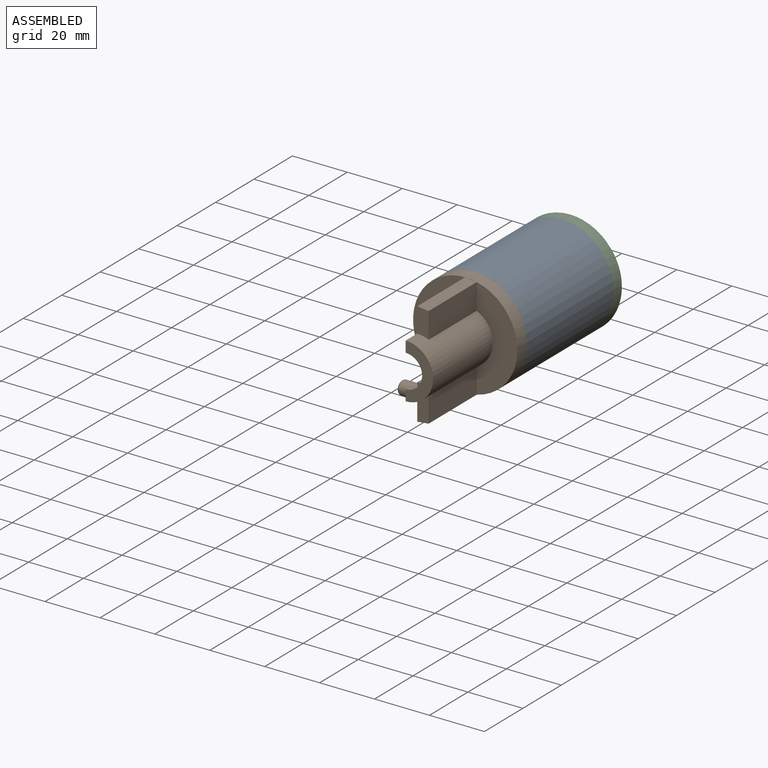
[diagram: assembled view]
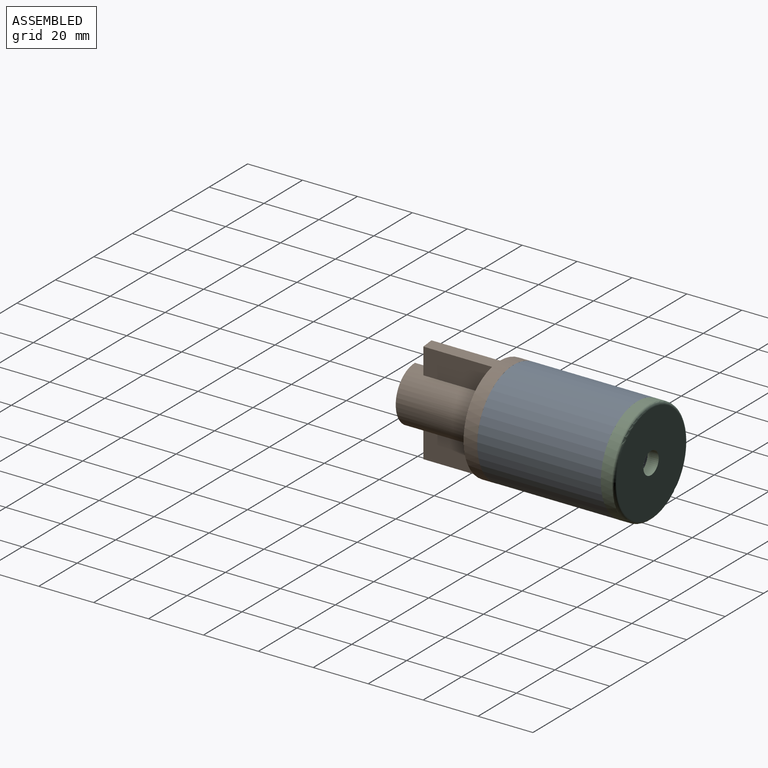
[diagram: assembled view, second angle]
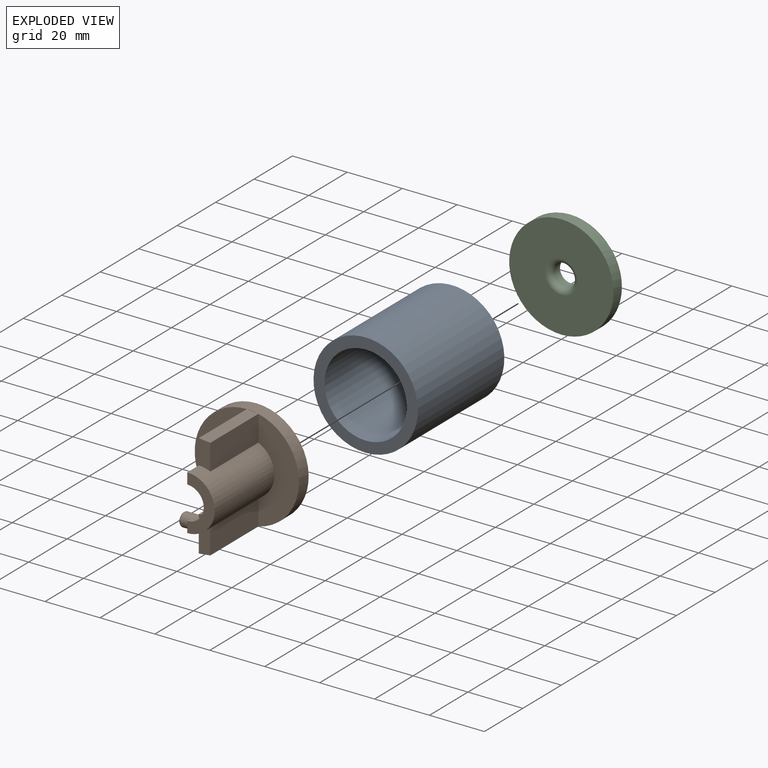
[diagram: exploded view]
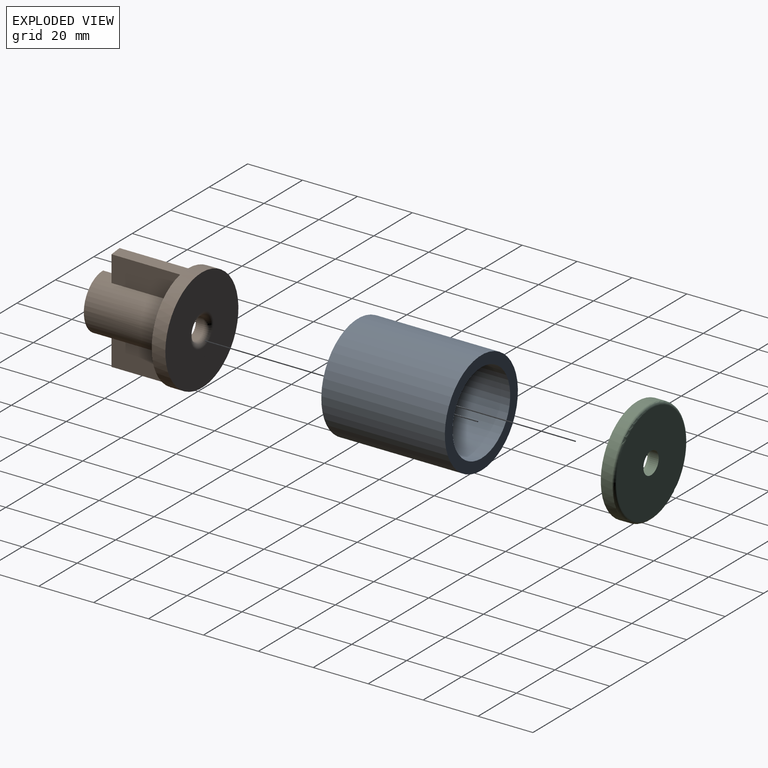
[diagram: exploded view, second angle]
ASSEMBLY  parts=3 mates=2
PART A: 4 faces, bbox 38x45x38 mm
  f0: cylinder r=15mm len=45mm, axis (0,1,0), area 4241.2mm2, adj f2,f3
  f1: cylinder r=19mm len=45mm, axis (0,1,0), area 5372.1mm2, adj f2,f3
  f2: plane 38x38mm, normal (0,-1,0), area 427.3mm2, adj f0,f1
  f3: plane 38x38mm, normal (0,1,0), area 427.3mm2, adj f0,f1
PART B: 26 faces, bbox 38x36x38 mm
  f0: plane 16x8mm, normal (0,-1,0), area 44mm2, adj f10,f11,f17,f19
  f1: plane 9.92x4.18mm, normal (0,-1,0), area 37.9mm2, adj f11,f12,f13,f14
  f2: plane 38x25mm, normal (0,-1,0), area 573.3mm2, adj f5,f8,f10,f11,f17
  f3: plane 37.07x14.82mm, normal (0,-1,0), area 333.5mm2, adj f5,f13,f14,f15
  f4: plane 4.18x0.47mm, normal (0,-1,0), area 0.3mm2, adj f5,f12
  f5: cylinder r=19mm len=38mm, axis (0,1,0), area 596.9mm2, adj f2,f3,f4,f6,f7
  f6: plane 4.18x0.47mm, normal (0,-1,0), area 0.3mm2, adj f5,f16
  f7: plane 38x38mm, normal (0,1,0), area 1021mm2, adj f5,f9
  f8: cylinder r=4mm len=8mm, axis (0,-1,0), area 75.4mm2, adj f2,f9
  f9: torus R=6mm, axis (0,-1,0), area 93.3mm2, adj f7,f8
  f10: cylinder r=6mm len=25mm, axis (0,1,0), area 471.2mm2, adj f0,f2,f11,f17
  f11: plane 31x13mm, normal (-1,0,0), area 343mm2, adj f0,f1,f2,f10,f12,f14,f19,f20
  f12: plane 25x4.18mm, normal (0.11,0,0.99), area 105.2mm2, adj f1,f4,f11,f13
  f13: plane 25x9.45mm, normal (1,0,0), area 236.3mm2, adj f1,f3,f12,f14
  f14: cylinder r=10mm len=31mm, axis (0,1,0), area 758.3mm2, adj f1,f3,f11,f13,f15,f17,f18,f22
  f15: plane 25x9.45mm, normal (1,0,0), area 236.3mm2, adj f3,f14,f16,f18
  f16: plane 25x4.18mm, normal (0.11,0,-0.99), area 105.2mm2, adj f6,f15,f17,f18
  f17: plane 31x13mm, normal (-1,0,0), area 323.4mm2, adj f0,f2,f10,f14,f16,f18,f19,f20
  f18: plane 9.92x4.18mm, normal (0,-1,0), area 37.9mm2, adj f14,f15,f16,f17
  f19: cylinder r=8mm len=16mm, axis (0,1,0), area 75.4mm2, adj f0,f11,f17,f20
  f20: plane 16x8mm, normal (0,1,0), area 44mm2, adj f11,f17,f19,f21
  f21: cylinder r=6mm len=12mm, axis (0,1,0), area 56.5mm2, adj f11,f17,f20,f22
  f22: plane 20x10mm, normal (0,-1,0), area 100.5mm2, adj f11,f14,f17,f21
  f23: cylinder r=2.5mm len=9mm, axis (1,0,0), area 141.4mm2, adj f17,f25
  f24: plane 3x3mm, normal (-1,0,0), area 7.1mm2, adj f25
  f25: torus R=1.5mm, axis (-1,0,0), area 21.1mm2, adj f23,f24
PART C: 6 faces, bbox 41.1x5x41.1 mm
  f0: cylinder r=19mm len=38mm, axis (0,-1,0), area 477.5mm2, adj f2,f4
  f1: plane 36x36mm, normal (0,1,0), area 967.6mm2, adj f3,f4
  f2: plane 38x38mm, normal (0,-1,0), area 1021mm2, adj f0,f5
  f3: cylinder r=4mm len=8mm, axis (0,1,0), area 75.4mm2, adj f1,f5
  f4: torus R=18mm, axis (0,1,0), area 183.9mm2, adj f0,f1
  f5: torus R=6mm, axis (0,1,0), area 93.3mm2, adj f2,f3
PLACE A at identity fixed
PLACE B at identity
PLACE C t=(0,0.1,0)mm
MATE planar C.f0 <-> A.f1  axis (0,-1,0) through (0,0,0)mm
MATE planar B.f5 <-> A.f1  axis (0,1,0) through (0,-45,0)mm
